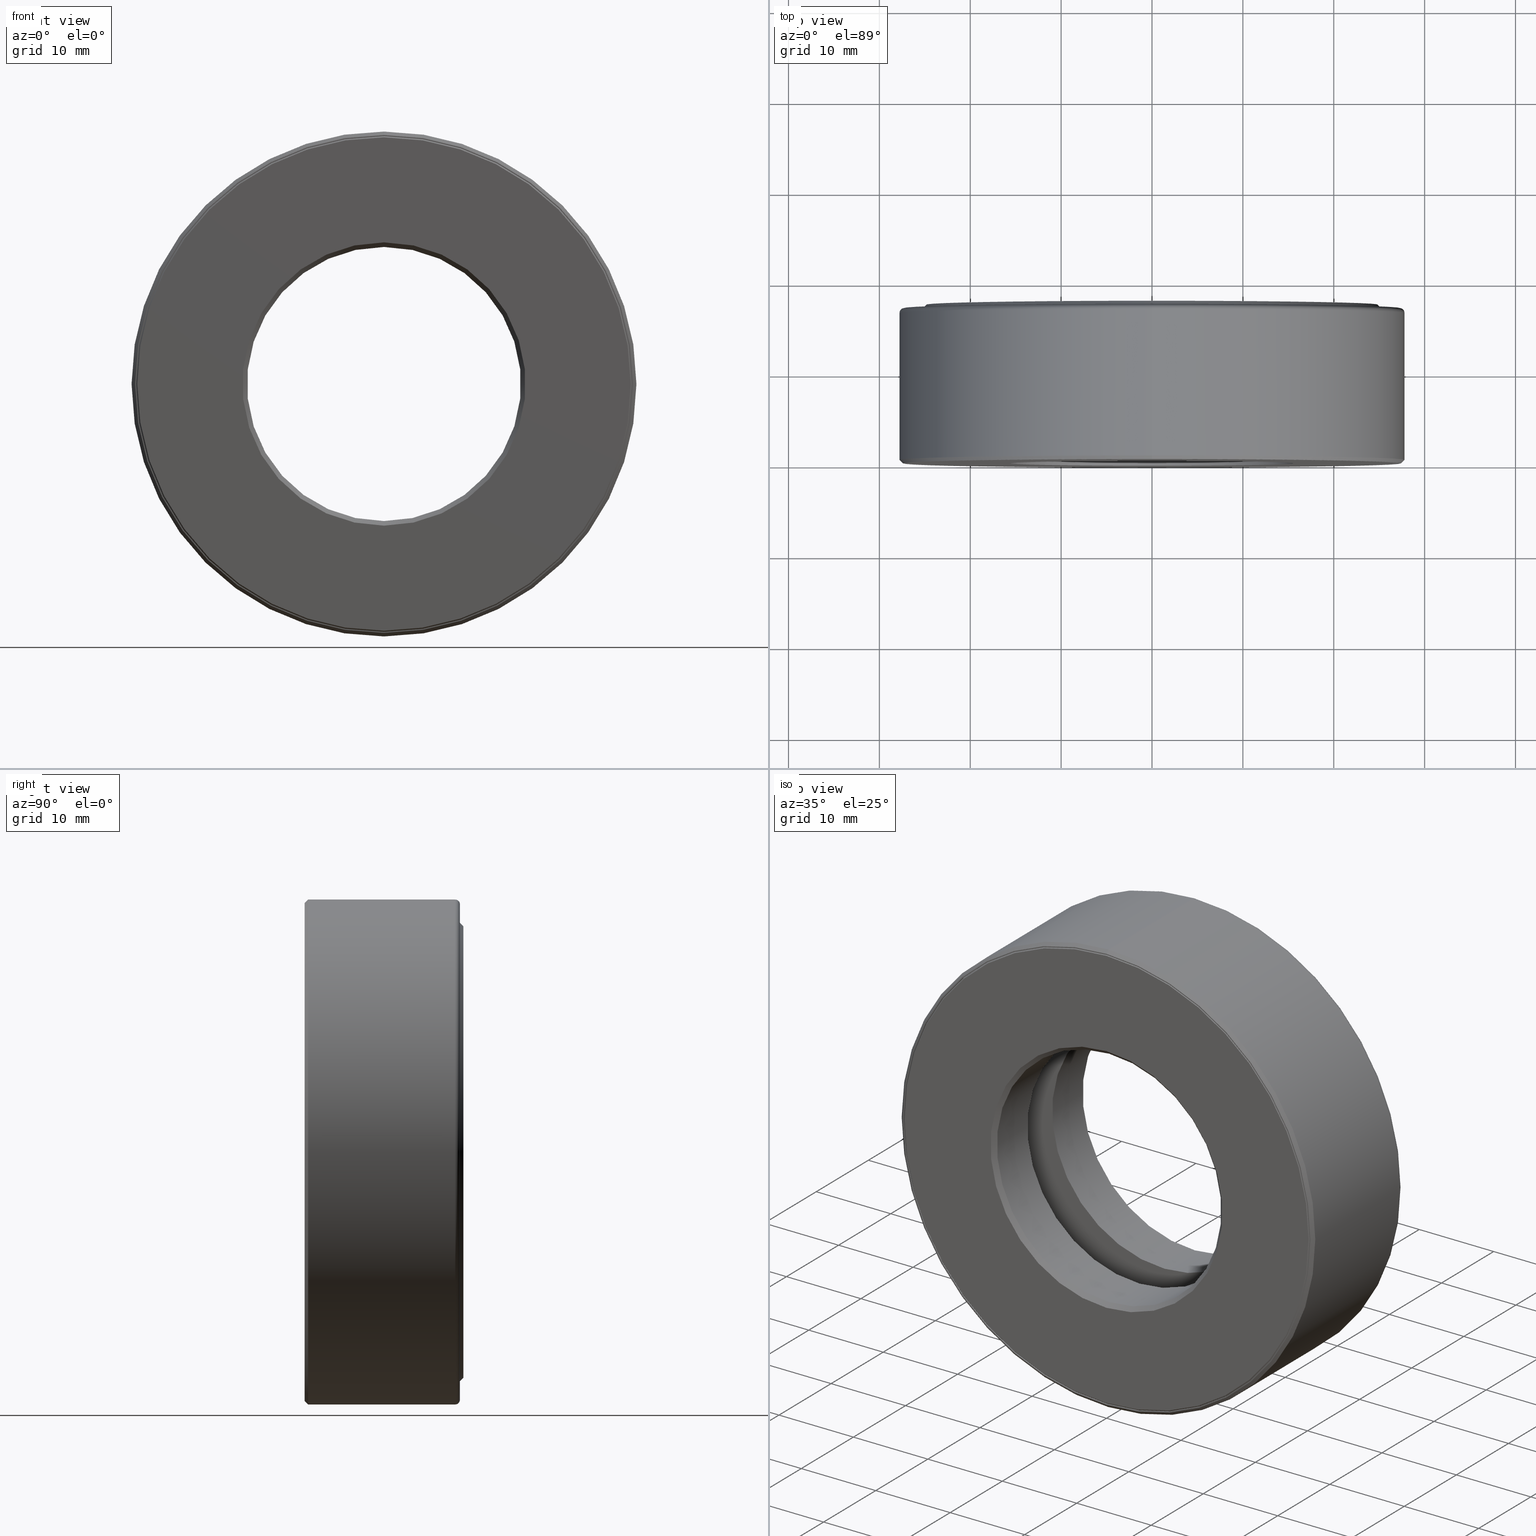
[diagram: canonical four-view strip — front | top / right | iso, engineering-drawing reading convention]
A machine part, canonical four-view strip (front | top / right | iso — engineering-drawing reading convention). The complete STEP part file that produces these views, byte-faithful:
ISO-10303-21;
HEADER;
FILE_DESCRIPTION (( 'STEP AP203' ),
    '1' );
FILE_NAME ('T-100-12.step',
    '2016-06-29T18:27:17',
    ( '' ),
    ( '' ),
    'SwSTEP 2.0',
    'SolidWorks 2016',
    '' );
FILE_SCHEMA (( 'CONFIG_CONTROL_DESIGN' ));
ENDSEC;

DATA;
#1 = CARTESIAN_POINT ( 'NONE',  ( 0.0000000000000000000, 0.2499999999999998600, 1.073749999999999800 ) ) ;
#2 = DIRECTION ( 'NONE',  ( 0.0000000000000000000, 0.0000000000000000000, 1.000000000000000000 ) ) ;
#3 = ORIENTED_EDGE ( 'NONE', *, *, #406, .F. ) ;
#4 = CC_DESIGN_DATE_AND_TIME_ASSIGNMENT ( #103, #355, ( #98 ) ) ;
#5 = EDGE_LOOP ( 'NONE', ( #513 ) ) ;
#6 =( LENGTH_UNIT ( ) NAMED_UNIT ( * ) SI_UNIT ( $, .METRE. ) );
#7 = VERTEX_POINT ( 'NONE', #529 ) ;
#8 = VERTEX_POINT ( 'NONE', #598 ) ;
#9 = CIRCLE ( 'NONE', #593, 0.6137500000000000200 ) ;
#10 = AXIS2_PLACEMENT_3D ( 'NONE', #183, #483, #520 ) ;
#11 = AXIS2_PLACEMENT_3D ( 'NONE', #75, #115, #419 ) ;
#12 = CARTESIAN_POINT ( 'NONE',  ( 0.0000000000000000000, 0.5995000000000001400, 0.0000000000000000000 ) ) ;
#13 = EDGE_LOOP ( 'NONE', ( #285 ) ) ;
#14 = ORIENTED_EDGE ( 'NONE', *, *, #166, .F. ) ;
#15 = DIRECTION ( 'NONE',  ( -0.0000000000000000000, 1.000000000000000000, -0.0000000000000000000 ) ) ;
#16 = FACE_BOUND ( 'NONE', #560, .T. ) ;
#17 = AXIS2_PLACEMENT_3D ( 'NONE', #210, #311, #359 ) ;
#18 = DIRECTION ( 'NONE',  ( 0.0000000000000000000, -0.0000000000000000000, -1.000000000000000000 ) ) ;
#19 = EDGE_LOOP ( 'NONE', ( #119 ) ) ;
#20 = CARTESIAN_POINT ( 'NONE',  ( 0.0000000000000000000, 0.6724999999999998800, 0.0000000000000000000 ) ) ;
#21 = VERTEX_POINT ( 'NONE', #1 ) ;
#22 = LOCAL_TIME ( 14, 27, 17.00000000000000000, #151 ) ;
#23 = VERTEX_POINT ( 'NONE', #326 ) ;
#24 = CIRCLE ( 'NONE', #577, 0.5937500000000000000 ) ;
#25 = EDGE_CURVE ( 'NONE', #436, #436, #109, .T. ) ;
#26 = UNCERTAINTY_MEASURE_WITH_UNIT (LENGTH_MEASURE( 1.000000000000000100E-005 ), #442, 'distance_accuracy_value', 'NONE');
#27 = DIRECTION ( 'NONE',  ( 0.0000000000000000000, 0.0000000000000000000, 1.000000000000000000 ) ) ;
#28 = ADVANCED_FACE ( 'NONE', ( #478, #493 ), #378, .T. ) ;
#29 = ORIENTED_EDGE ( 'NONE', *, *, #130, .T. ) ;
#30 = CLOSED_SHELL ( 'NONE', ( #587 ) ) ;
#31 = DIRECTION ( 'NONE',  ( 0.0000000000000000000, 0.0000000000000000000, 1.000000000000000000 ) ) ;
#32 = VERTEX_POINT ( 'NONE', #300 ) ;
#33 = CYLINDRICAL_SURFACE ( 'NONE', #403, 0.5937500000000000000 ) ;
#34 = AXIS2_PLACEMENT_3D ( 'NONE', #539, #201, #156 ) ;
#35 = ORIENTED_EDGE ( 'NONE', *, *, #71, .T. ) ;
#36 = EDGE_CURVE ( 'NONE', #23, #23, #82, .T. ) ;
#37 = DIRECTION ( 'NONE',  ( -0.0000000000000000000, 1.000000000000000000, -0.0000000000000000000 ) ) ;
#38 = FACE_OUTER_BOUND ( 'NONE', #343, .T. ) ;
#39 = PRODUCT ( 'T-100-12', 'T-100-12', '', ( #74 ) ) ;
#40 = CARTESIAN_POINT ( 'NONE',  ( 0.0000000000000000000, 0.6524999999999997500, 1.093750000000000000 ) ) ;
#41 = ORIENTED_EDGE ( 'NONE', *, *, #261, .T. ) ;
#42 = AXIS2_PLACEMENT_3D ( 'NONE', #323, #511, #31 ) ;
#43 = DIRECTION ( 'NONE',  ( 0.0000000000000000000, 0.0000000000000000000, 1.000000000000000000 ) ) ;
#44 = EDGE_LOOP ( 'NONE', ( #458 ) ) ;
#45 = CARTESIAN_POINT ( 'NONE',  ( 0.0000000000000000000, 0.2500000000000000000, 0.5937500000000000000 ) ) ;
#46 = MANIFOLD_SOLID_BREP ( 'BALLS[2]', #60 ) ;
#47 = EDGE_CURVE ( 'NONE', #8, #8, #370, .T. ) ;
#48 = DIRECTION ( 'NONE',  ( -0.0000000000000000000, 1.000000000000000000, -0.0000000000000000000 ) ) ;
#49 = FACE_OUTER_BOUND ( 'NONE', #259, .T. ) ;
#50 = DIRECTION ( 'NONE',  ( 0.0000000000000000000, 0.0000000000000000000, 1.000000000000000000 ) ) ;
#51 = DIRECTION ( 'NONE',  ( 0.0000000000000000000, 0.0000000000000000000, 1.000000000000000000 ) ) ;
#52 = DIRECTION ( 'NONE',  ( -0.0000000000000000000, 1.000000000000000000, -0.0000000000000000000 ) ) ;
#53 = ORIENTED_EDGE ( 'NONE', *, *, #215, .T. ) ;
#54 = CARTESIAN_POINT ( 'NONE',  ( 0.0000000000000000000, 0.0000000000000000000, 0.6137500000000000200 ) ) ;
#55 = DIRECTION ( 'NONE',  ( -0.0000000000000000000, 1.000000000000000000, -0.0000000000000000000 ) ) ;
#56 = PERSON ( 'UNSPECIFIED', 'UNSPECIFIED', 'UNSPECIFIED', ('UNSPECIFIED'), ('UNSPECIFIED'), ('UNSPECIFIED') ) ;
#57 = CALENDAR_DATE ( 2016, 29, 6 ) ;
#58 = CIRCLE ( 'NONE', #553, 1.013750000000000200 ) ;
#59 = PLANE ( 'NONE',  #34 ) ;
#60 = CLOSED_SHELL ( 'NONE', ( #475 ) ) ;
#61 = ORIENTED_EDGE ( 'NONE', *, *, #333, .F. ) ;
#62 = DIMENSIONAL_EXPONENTS ( 1.000000000000000000, 0.0000000000000000000, 0.0000000000000000000, 0.0000000000000000000, 0.0000000000000000000, 0.0000000000000000000, 0.0000000000000000000 ) ;
#63 = DIRECTION ( 'NONE',  ( -0.0000000000000000000, 1.000000000000000000, -0.0000000000000000000 ) ) ;
#64 = AXIS2_PLACEMENT_3D ( 'NONE', #399, #250, #496 ) ;
#65 = TOROIDAL_SURFACE ( 'NONE', #400, 0.9084999999999998600, 0.1562499999999999200 ) ;
#66 = APPROVAL_ROLE ( '' ) ;
#67 = DIRECTION ( 'NONE',  ( 0.0000000000000000000, 0.0000000000000000000, -1.000000000000000000 ) ) ;
#68 = EDGE_LOOP ( 'NONE', ( #486 ) ) ;
#69 = DIRECTION ( 'NONE',  ( -0.0000000000000000000, 1.000000000000000000, -0.0000000000000000000 ) ) ;
#70 = CARTESIAN_POINT ( 'NONE',  ( 0.0000000000000000000, 0.6875000000000000000, 0.0000000000000000000 ) ) ;
#71 = EDGE_CURVE ( 'NONE', #121, #121, #124, .T. ) ;
#72 = FACE_OUTER_BOUND ( 'NONE', #386, .T. ) ;
#73 = DIRECTION ( 'NONE',  ( 0.0000000000000000000, 0.0000000000000000000, 1.000000000000000000 ) ) ;
#74 = MECHANICAL_CONTEXT ( 'NONE', #161, 'mechanical' ) ;
#75 = CARTESIAN_POINT ( 'NONE',  ( -1.175183988073409900E-032, -3.148027961449053600E-017, 0.0000000000000000000 ) ) ;
#76 = ORIENTED_EDGE ( 'NONE', *, *, #439, .F. ) ;
#77 = ADVANCED_FACE ( 'NONE', ( #588, #233 ), #564, .F. ) ;
#78 = AXIS2_PLACEMENT_3D ( 'NONE', #338, #92, #530 ) ;
#79 = CARTESIAN_POINT ( 'NONE',  ( 0.0000000000000000000, 0.6724999999999998800, 0.0000000000000000000 ) ) ;
#80 = SHAPE_DEFINITION_REPRESENTATION ( #145, #198 ) ;
#81 = CARTESIAN_POINT ( 'NONE',  ( 0.0000000000000000000, -6.616194359655631800E-017, 0.0000000000000000000 ) ) ;
#82 = CIRCLE ( 'NONE', #10, 0.5937500000000000000 ) ;
#83 = FACE_OUTER_BOUND ( 'NONE', #84, .T. ) ;
#84 = EDGE_LOOP ( 'NONE', ( #155 ) ) ;
#85 = EDGE_LOOP ( 'NONE', ( #572 ) ) ;
#86 = DIRECTION ( 'NONE',  ( 0.0000000000000000000, -0.0000000000000000000, -1.000000000000000000 ) ) ;
#87 = EDGE_CURVE ( 'NONE', #152, #152, #602, .T. ) ;
#88 = DIRECTION ( 'NONE',  ( 0.0000000000000000000, 0.0000000000000000000, 1.000000000000000000 ) ) ;
#89 = ADVANCED_FACE ( 'NONE', ( #193, #16 ), #153, .T. ) ;
#90 = CARTESIAN_POINT ( 'NONE',  ( 0.0000000000000000000, 0.5995000000000001400, 1.066749999999999900 ) ) ;
#91 = CARTESIAN_POINT ( 'NONE',  ( 0.0000000000000000000, 0.0000000000000000000, 0.0000000000000000000 ) ) ;
#92 = DIRECTION ( 'NONE',  ( -0.0000000000000000000, 1.000000000000000000, -0.0000000000000000000 ) ) ;
#93 = ORIENTED_EDGE ( 'NONE', *, *, #235, .F. ) ;
#94 = CALENDAR_DATE ( 2016, 29, 6 ) ;
#95 = FACE_BOUND ( 'NONE', #165, .T. ) ;
#96 = EDGE_CURVE ( 'NONE', #518, #518, #387, .T. ) ;
#97 = CARTESIAN_POINT ( 'NONE',  ( 0.0000000000000000000, 0.6524999999999997500, 0.0000000000000000000 ) ) ;
#98 = PRODUCT_DEFINITION ( 'UNKNOWN', '', #433, #417 ) ;
#99 = ADVANCED_FACE ( 'NONE', ( #127, #228 ), #116, .F. ) ;
#100 = ORIENTED_EDGE ( 'NONE', *, *, #373, .F. ) ;
#101 = CARTESIAN_POINT ( 'NONE',  ( 0.0000000000000000000, 0.4375000000000000000, 1.066749999999999900 ) ) ;
#102 = CARTESIAN_POINT ( 'NONE',  ( 0.0000000000000000000, 0.0000000000000000000, 0.0000000000000000000 ) ) ;
#103 = DATE_AND_TIME ( #94, #379 ) ;
#104 = DIRECTION ( 'NONE',  ( -0.0000000000000000000, 1.000000000000000000, -0.0000000000000000000 ) ) ;
#105 = AXIS2_PLACEMENT_3D ( 'NONE', #255, #263, #206 ) ;
#106 = FACE_OUTER_BOUND ( 'NONE', #363, .T. ) ;
#107 = CARTESIAN_POINT ( 'NONE',  ( 0.0000000000000000000, 0.02000000000000005900, 0.0000000000000000000 ) ) ;
#108 = CARTESIAN_POINT ( 'NONE',  ( -1.751974655613626800E-031, -6.507490045258007300E-017, 0.0000000000000000000 ) ) ;
#109 = CIRCLE ( 'NONE', #446, 1.073750000000000000 ) ;
#110 = APPROVAL_ROLE ( '' ) ;
#111 = APPROVAL_DATE_TIME ( #328, #137 ) ;
#112 = AXIS2_PLACEMENT_3D ( 'NONE', #449, #408, #353 ) ;
#113 = CALENDAR_DATE ( 2016, 29, 6 ) ;
#114 = FACE_BOUND ( 'NONE', #128, .T. ) ;
#115 = DIRECTION ( 'NONE',  ( -0.0000000000000000000, 1.000000000000000000, 0.0000000000000000000 ) ) ;
#116 = CYLINDRICAL_SURFACE ( 'NONE', #189, 1.013750000000000200 ) ;
#117 = PRODUCT_RELATED_PRODUCT_CATEGORY ( 'detail', '', ( #39 ) ) ;
#118 = DIRECTION ( 'NONE',  ( 0.0000000000000000000, -1.000000000000000000, 0.0000000000000000000 ) ) ;
#119 = ORIENTED_EDGE ( 'NONE', *, *, #573, .F. ) ;
#120 = LENGTH_MEASURE_WITH_UNIT ( LENGTH_MEASURE( 0.02539999999999999900 ), #6 );
#121 = VERTEX_POINT ( 'NONE', #45 ) ;
#122 = FACE_OUTER_BOUND ( 'NONE', #443, .T. ) ;
#123 = CARTESIAN_POINT ( 'NONE',  ( 0.0000000000000000000, 0.02000000000000005900, 0.0000000000000000000 ) ) ;
#124 = CIRCLE ( 'NONE', #78, 0.5937500000000000000 ) ;
#125 = APPROVAL_PERSON_ORGANIZATION ( #290, #461, #170 ) ;
#126 = CIRCLE ( 'NONE', #224, 1.078750000000000100 ) ;
#127 = FACE_OUTER_BOUND ( 'NONE', #362, .T. ) ;
#128 = EDGE_LOOP ( 'NONE', ( #372 ) ) ;
#129 = CARTESIAN_POINT ( 'NONE',  ( 0.0000000000000000000, 0.6875000000000000000, 0.0000000000000000000 ) ) ;
#130 = EDGE_CURVE ( 'NONE', #133, #133, #508, .T. ) ;
#131 = ORIENTED_EDGE ( 'NONE', *, *, #261, .F. ) ;
#132 = SECURITY_CLASSIFICATION ( '', '', #164 ) ;
#133 = VERTEX_POINT ( 'NONE', #337 ) ;
#134 = CIRCLE ( 'NONE', #463, 0.7834999999999999700 ) ;
#135 = MANIFOLD_SOLID_BREP ( 'BALLS[1]', #30 ) ;
#136 = CARTESIAN_POINT ( 'NONE',  ( 0.0000000000000000000, 0.0000000000000000000, 0.0000000000000000000 ) ) ;
#137 = APPROVAL ( #455, 'UNSPECIFIED' ) ;
#138 = ADVANCED_FACE ( 'NONE', ( #543, #72 ), #480, .F. ) ;
#139 = CARTESIAN_POINT ( 'NONE',  ( 0.0000000000000000000, 0.01500000000000004500, 1.093750000000000000 ) ) ;
#140 = CARTESIAN_POINT ( 'NONE',  ( 0.0000000000000000000, -6.616194359655631800E-017, 0.0000000000000000000 ) ) ;
#141 = ORIENTED_EDGE ( 'NONE', *, *, #555, .F. ) ;
#142 = CARTESIAN_POINT ( 'NONE',  ( 0.0000000000000000000, 0.0000000000000000000, 0.0000000000000000000 ) ) ;
#143 = AXIS2_PLACEMENT_3D ( 'NONE', #459, #173, #27 ) ;
#144 = FACE_OUTER_BOUND ( 'NONE', #19, .T. ) ;
#145 = PRODUCT_DEFINITION_SHAPE ( 'NONE', 'NONE',  #98 ) ;
#146 = CARTESIAN_POINT ( 'NONE',  ( 0.0000000000000000000, 0.0000000000000000000, 0.0000000000000000000 ) ) ;
#147 = CC_DESIGN_PERSON_AND_ORGANIZATION_ASSIGNMENT ( #265, #267, ( #39 ) ) ;
#148 = DIRECTION ( 'NONE',  ( 0.0000000000000000000, 0.0000000000000000000, 1.000000000000000000 ) ) ;
#149 = EDGE_LOOP ( 'NONE', ( #305 ) ) ;
#150 = AXIS2_PLACEMENT_3D ( 'NONE', #129, #470, #275 ) ;
#151 = COORDINATED_UNIVERSAL_TIME_OFFSET ( 5, 0, .BEHIND. ) ;
#152 = VERTEX_POINT ( 'NONE', #274 ) ;
#153 = CONICAL_SURFACE ( 'NONE', #460, 1.078750000000000100, 0.7853981633974438400 ) ;
#154 = EDGE_LOOP ( 'NONE', ( #438 ) ) ;
#155 = ORIENTED_EDGE ( 'NONE', *, *, #25, .T. ) ;
#156 = DIRECTION ( 'NONE',  ( 0.0000000000000000000, -0.0000000000000000000, -1.000000000000000000 ) ) ;
#157 = VERTEX_POINT ( 'NONE', #434 ) ;
#158 = DIRECTION ( 'NONE',  ( -0.0000000000000000000, 1.000000000000000000, -0.0000000000000000000 ) ) ;
#159 = APPROVAL_PERSON_ORGANIZATION ( #488, #278, #66 ) ;
#160 = FACE_OUTER_BOUND ( 'NONE', #485, .T. ) ;
#161 = APPLICATION_CONTEXT ( 'configuration controlled 3d designs of mechanical parts and assemblies' ) ;
#162 = CIRCLE ( 'NONE', #64, 1.073750000000000000 ) ;
#163 = PLANE ( 'NONE',  #112 ) ;
#164 = SECURITY_CLASSIFICATION_LEVEL ( 'unclassified' ) ;
#165 = EDGE_LOOP ( 'NONE', ( #424 ) ) ;
#166 = EDGE_CURVE ( 'NONE', #380, #380, #422, .T. ) ;
#167 = PERSON_AND_ORGANIZATION ( #56, #567 ) ;
#168 = DIRECTION ( 'NONE',  ( -0.0000000000000000000, 1.000000000000000000, -0.0000000000000000000 ) ) ;
#169 = FACE_BOUND ( 'NONE', #13, .T. ) ;
#170 = APPROVAL_ROLE ( '' ) ;
#171 = CC_DESIGN_APPROVAL ( #137, ( #132 ) ) ;
#172 = EDGE_LOOP ( 'NONE', ( #29 ) ) ;
#173 = DIRECTION ( 'NONE',  ( -0.0000000000000000000, 1.000000000000000000, 0.0000000000000000000 ) ) ;
#174 = CARTESIAN_POINT ( 'NONE',  ( 3.172010796338986400E-015, 0.3437500000000000000, 0.9084999999999998600 ) ) ;
#175 = ADVANCED_FACE ( 'NONE', ( #38, #248 ), #592, .T. ) ;
#176 = DIRECTION ( 'NONE',  ( 0.0000000000000000000, 0.0000000000000000000, 1.000000000000000000 ) ) ;
#177 = EDGE_LOOP ( 'NONE', ( #322 ) ) ;
#178 = CC_DESIGN_PERSON_AND_ORGANIZATION_ASSIGNMENT ( #191, #505, ( #98 ) ) ;
#179 = COORDINATED_UNIVERSAL_TIME_OFFSET ( 5, 0, .BEHIND. ) ;
#180 = FACE_OUTER_BOUND ( 'NONE', #85, .T. ) ;
#181 = CARTESIAN_POINT ( 'NONE',  ( 0.0000000000000000000, 0.6674999999999998700, 0.5937500000000000000 ) ) ;
#182 = ORIENTED_EDGE ( 'NONE', *, *, #47, .F. ) ;
#183 = CARTESIAN_POINT ( 'NONE',  ( 0.0000000000000000000, 0.4375000000000000000, 0.0000000000000000000 ) ) ;
#184 = EDGE_CURVE ( 'NONE', #489, #489, #484, .T. ) ;
#185 = EDGE_LOOP ( 'NONE', ( #304 ) ) ;
#186 = CARTESIAN_POINT ( 'NONE',  ( 0.0000000000000000000, 0.6724999999999998800, 1.073750000000000000 ) ) ;
#187 = CARTESIAN_POINT ( 'NONE',  ( 0.0000000000000000000, 0.6524999999999997500, 1.073750000000000000 ) ) ;
#188 = DIRECTION ( 'NONE',  ( 0.0000000000000000000, 0.0000000000000000000, 1.000000000000000000 ) ) ;
#189 = AXIS2_PLACEMENT_3D ( 'NONE', #476, #52, #237 ) ;
#190 = ORIENTED_EDGE ( 'NONE', *, *, #411, .T. ) ;
#191 = PERSON_AND_ORGANIZATION ( #56, #567 ) ;
#192 = DIRECTION ( 'NONE',  ( -0.0000000000000000000, 1.000000000000000000, -0.0000000000000000000 ) ) ;
#193 = FACE_OUTER_BOUND ( 'NONE', #218, .T. ) ;
#194 = ADVANCED_FACE ( 'NONE', ( #106, #169 ), #221, .F. ) ;
#195 = ORIENTED_EDGE ( 'NONE', *, *, #184, .F. ) ;
#196 = ORIENTED_EDGE ( 'NONE', *, *, #184, .T. ) ;
#197 = DIRECTION ( 'NONE',  ( -0.0000000000000000000, 1.000000000000000000, -0.0000000000000000000 ) ) ;
#198 = ADVANCED_BREP_SHAPE_REPRESENTATION ( 'T-100-12', ( #222, #428, #571, #135, #46, #324, #524 ), #306 ) ;
#199 = AXIS2_PLACEMENT_3D ( 'NONE', #226, #284, #86 ) ;
#200 = FACE_BOUND ( 'NONE', #185, .T. ) ;
#201 = DIRECTION ( 'NONE',  ( 0.0000000000000000000, -1.000000000000000000, 0.0000000000000000000 ) ) ;
#202 = EDGE_CURVE ( 'NONE', #282, #282, #416, .T. ) ;
#203 = EDGE_LOOP ( 'NONE', ( #3 ) ) ;
#204 = ORIENTED_EDGE ( 'NONE', *, *, #468, .T. ) ;
#205 = DIRECTION ( 'NONE',  ( -0.0000000000000000000, 1.000000000000000000, -0.0000000000000000000 ) ) ;
#206 = DIRECTION ( 'NONE',  ( 0.0000000000000000000, 0.0000000000000000000, 1.000000000000000000 ) ) ;
#207 = AXIS2_PLACEMENT_3D ( 'NONE', #70, #118, #545 ) ;
#208 = FACE_OUTER_BOUND ( 'NONE', #512, .T. ) ;
#209 = CARTESIAN_POINT ( 'NONE',  ( 0.0000000000000000000, 0.4375000000000000000, 0.0000000000000000000 ) ) ;
#210 = CARTESIAN_POINT ( 'NONE',  ( 0.9084999999999998600, 0.3437500000000000000, -6.344021592677972700E-015 ) ) ;
#211 = PERSON_AND_ORGANIZATION_ROLE ( 'creator' ) ;
#212 = ORIENTED_EDGE ( 'NONE', *, *, #166, .T. ) ;
#213 = AXIS2_PLACEMENT_3D ( 'NONE', #91, #435, #188 ) ;
#214 = CARTESIAN_POINT ( 'NONE',  ( 0.0000000000000000000, 0.0000000000000000000, 0.0000000000000000000 ) ) ;
#215 = EDGE_CURVE ( 'NONE', #536, #536, #331, .T. ) ;
#216 = DIRECTION ( 'NONE',  ( 0.0000000000000000000, 0.0000000000000000000, 1.000000000000000000 ) ) ;
#217 = PLANE ( 'NONE',  #199 ) ;
#218 = EDGE_LOOP ( 'NONE', ( #14 ) ) ;
#219 = DIRECTION ( 'NONE',  ( -0.0000000000000000000, 1.000000000000000000, -0.0000000000000000000 ) ) ;
#220 = APPROVAL_DATE_TIME ( #357, #461 ) ;
#221 = CONICAL_SURFACE ( 'NONE', #538, 0.5937500000000000000, 0.7853981633974466100 ) ;
#222 = MANIFOLD_SOLID_BREP ( 'Revolve2[1]', #471 ) ;
#223 = ORIENTED_EDGE ( 'NONE', *, *, #202, .T. ) ;
#224 = AXIS2_PLACEMENT_3D ( 'NONE', #81, #559, #88 ) ;
#225 = EDGE_LOOP ( 'NONE', ( #35 ) ) ;
#226 = CARTESIAN_POINT ( 'NONE',  ( -8.998181797313131200E-017, 0.2499999999999999700, 0.0000000000000000000 ) ) ;
#227 = COORDINATED_UNIVERSAL_TIME_OFFSET ( 5, 0, .BEHIND. ) ;
#228 = FACE_OUTER_BOUND ( 'NONE', #401, .T. ) ;
#229 = AXIS2_PLACEMENT_3D ( 'NONE', #552, #334, #474 ) ;
#230 = ADVANCED_FACE ( 'NONE', ( #515, #122 ), #33, .F. ) ;
#231 = AXIS2_PLACEMENT_3D ( 'NONE', #253, #205, #537 ) ;
#232 = DIRECTION ( 'NONE',  ( 0.0000000000000000000, 0.0000000000000000000, 1.000000000000000000 ) ) ;
#233 = FACE_OUTER_BOUND ( 'NONE', #225, .T. ) ;
#234 = EDGE_LOOP ( 'NONE', ( #190 ) ) ;
#235 = EDGE_CURVE ( 'NONE', #268, #268, #597, .T. ) ;
#236 = CONICAL_SURFACE ( 'NONE', #308, 1.068750000000000100, 0.7853981633974581600 ) ;
#237 = DIRECTION ( 'NONE',  ( 0.0000000000000000000, 0.0000000000000000000, 1.000000000000000000 ) ) ;
#238 = CC_DESIGN_PERSON_AND_ORGANIZATION_ASSIGNMENT ( #313, #500, ( #132 ) ) ;
#239 = CARTESIAN_POINT ( 'NONE',  ( 0.0000000000000000000, 0.6674999999999998700, 0.0000000000000000000 ) ) ;
#240 = EDGE_LOOP ( 'NONE', ( #296 ) ) ;
#241 = CARTESIAN_POINT ( 'NONE',  ( 0.0000000000000000000, 0.6875000000000000000, 0.0000000000000000000 ) ) ;
#242 = AXIS2_PLACEMENT_3D ( 'NONE', #79, #69, #453 ) ;
#243 = ORIENTED_EDGE ( 'NONE', *, *, #47, .T. ) ;
#244 = ADVANCED_FACE ( 'NONE', ( ), #299, .T. ) ;
#245 = AXIS2_PLACEMENT_3D ( 'NONE', #97, #192, #148 ) ;
#246 = SPHERICAL_SURFACE ( 'NONE', #601, 0.1562500000000000000 ) ;
#247 = DIRECTION ( 'NONE',  ( -0.0000000000000000000, 1.000000000000000000, -0.0000000000000000000 ) ) ;
#248 = FACE_OUTER_BOUND ( 'NONE', #342, .T. ) ;
#249 = EDGE_CURVE ( 'NONE', #382, #382, #358, .T. ) ;
#250 = DIRECTION ( 'NONE',  ( -0.0000000000000000000, 1.000000000000000000, -0.0000000000000000000 ) ) ;
#251 = CARTESIAN_POINT ( 'NONE',  ( 0.0000000000000000000, 0.004999999999999648800, 0.0000000000000000000 ) ) ;
#252 = ORIENTED_EDGE ( 'NONE', *, *, #87, .T. ) ;
#253 = CARTESIAN_POINT ( 'NONE',  ( 0.0000000000000000000, 0.4375000000000000000, 0.0000000000000000000 ) ) ;
#254 = FACE_OUTER_BOUND ( 'NONE', #565, .T. ) ;
#255 = CARTESIAN_POINT ( 'NONE',  ( 0.0000000000000000000, 0.0000000000000000000, 0.0000000000000000000 ) ) ;
#256 = CIRCLE ( 'NONE', #391, 1.066749999999999900 ) ;
#257 = AXIS2_PLACEMENT_3D ( 'NONE', #575, #104, #541 ) ;
#258 = PLANE ( 'NONE',  #402 ) ;
#259 = EDGE_LOOP ( 'NONE', ( #252 ) ) ;
#260 = PLANE ( 'NONE',  #11 ) ;
#261 = EDGE_CURVE ( 'NONE', #495, #495, #292, .T. ) ;
#262 = VERTEX_POINT ( 'NONE', #482 ) ;
#263 = DIRECTION ( 'NONE',  ( -0.0000000000000000000, 1.000000000000000000, -0.0000000000000000000 ) ) ;
#264 = AXIS2_PLACEMENT_3D ( 'NONE', #142, #37, #549 ) ;
#265 = PERSON_AND_ORGANIZATION ( #56, #567 ) ;
#266 = CONICAL_SURFACE ( 'NONE', #207, 0.9787499999999997900, 0.7853981633974490600 ) ;
#267 = PERSON_AND_ORGANIZATION_ROLE ( 'design_owner' ) ;
#268 = VERTEX_POINT ( 'NONE', #522 ) ;
#269 = DIRECTION ( 'NONE',  ( 0.0000000000000000000, 0.0000000000000000000, 1.000000000000000000 ) ) ;
#270 = ADVANCED_FACE ( 'NONE', ( #490, #367 ), #163, .T. ) ;
#271 = AXIS2_PLACEMENT_3D ( 'NONE', #332, #595, #586 ) ;
#272 = EDGE_LOOP ( 'NONE', ( #41 ) ) ;
#273 = AXIS2_PLACEMENT_3D ( 'NONE', #576, #356, #494 ) ;
#274 = CARTESIAN_POINT ( 'NONE',  ( 0.0000000000000000000, 0.2499999999999998900, 1.033499999999999900 ) ) ;
#275 = DIRECTION ( 'NONE',  ( 0.0000000000000000000, 0.0000000000000000000, 1.000000000000000000 ) ) ;
#276 = CONICAL_SURFACE ( 'NONE', #423, 0.5937500000000000000, 0.7853981633974466100 ) ;
#277 = EDGE_CURVE ( 'NONE', #504, #504, #162, .T. ) ;
#278 = APPROVAL ( #580, 'UNSPECIFIED' ) ;
#279 = ORIENTED_EDGE ( 'NONE', *, *, #36, .F. ) ;
#280 = VERTEX_POINT ( 'NONE', #289 ) ;
#281 = APPROVAL_DATE_TIME ( #556, #278 ) ;
#282 = VERTEX_POINT ( 'NONE', #431 ) ;
#283 = FACE_OUTER_BOUND ( 'NONE', #68, .T. ) ;
#284 = DIRECTION ( 'NONE',  ( 0.0000000000000000000, -1.000000000000000000, 0.0000000000000000000 ) ) ;
#285 = ORIENTED_EDGE ( 'NONE', *, *, #96, .F. ) ;
#286 = ADVANCED_FACE ( 'NONE', ( #316, #49 ), #528, .F. ) ;
#287 = ORIENTED_EDGE ( 'NONE', *, *, #555, .T. ) ;
#288 = DIRECTION ( 'NONE',  ( 0.0000000000000000000, -1.000000000000000000, 0.0000000000000000000 ) ) ;
#289 = CARTESIAN_POINT ( 'NONE',  ( 0.0000000000000000000, -6.616194359655631800E-017, 1.078750000000000100 ) ) ;
#290 = PERSON_AND_ORGANIZATION ( #56, #567 ) ;
#291 = CARTESIAN_POINT ( 'NONE',  ( 0.0000000000000000000, -6.398785730860387700E-017, 0.0000000000000000000 ) ) ;
#292 = CIRCLE ( 'NONE', #578, 1.066749999999999900 ) ;
#293 = CC_DESIGN_DATE_AND_TIME_ASSIGNMENT ( #426, #405, ( #132 ) ) ;
#294 = DIRECTION ( 'NONE',  ( -0.0000000000000000000, 1.000000000000000000, -0.0000000000000000000 ) ) ;
#295 = DIRECTION ( 'NONE',  ( 0.0000000000000000000, 0.0000000000000000000, 1.000000000000000000 ) ) ;
#296 = ORIENTED_EDGE ( 'NONE', *, *, #583, .F. ) ;
#297 =( NAMED_UNIT ( * ) PLANE_ANGLE_UNIT ( ) SI_UNIT ( $, .RADIAN. ) );
#298 = DIRECTION ( 'NONE',  ( -0.0000000000000000000, 1.000000000000000000, -0.0000000000000000000 ) ) ;
#299 = SPHERICAL_SURFACE ( 'NONE', #273, 0.1562500000000000000 ) ;
#300 = CARTESIAN_POINT ( 'NONE',  ( 0.0000000000000000000, 0.6724999999999998800, 1.013750000000000200 ) ) ;
#301 = ADVANCED_FACE ( 'NONE', ( #441, #180 ), #454, .F. ) ;
#302 = CARTESIAN_POINT ( 'NONE',  ( -0.9084999999999998600, 0.3437500000000000000, 0.0000000000000000000 ) ) ;
#303 = ADVANCED_FACE ( 'NONE', ( #395, #95 ), #276, .F. ) ;
#304 = ORIENTED_EDGE ( 'NONE', *, *, #373, .T. ) ;
#305 = ORIENTED_EDGE ( 'NONE', *, *, #249, .T. ) ;
#306 =( GEOMETRIC_REPRESENTATION_CONTEXT ( 3 ) GLOBAL_UNCERTAINTY_ASSIGNED_CONTEXT ( ( #26 ) ) GLOBAL_UNIT_ASSIGNED_CONTEXT ( ( #442, #297, #317 ) ) REPRESENTATION_CONTEXT ( 'NONE', 'WORKASPACE' ) );
#307 = AXIS2_PLACEMENT_3D ( 'NONE', #108, #315, #269 ) ;
#308 = AXIS2_PLACEMENT_3D ( 'NONE', #445, #158, #487 ) ;
#309 = PERSON_AND_ORGANIZATION_ROLE ( 'design_supplier' ) ;
#310 = EDGE_LOOP ( 'NONE', ( #329 ) ) ;
#311 = DIRECTION ( 'NONE',  ( 6.982962677686269100E-015, -0.0000000000000000000, 1.000000000000000000 ) ) ;
#312 = CC_DESIGN_PERSON_AND_ORGANIZATION_ASSIGNMENT ( #440, #309, ( #433 ) ) ;
#313 = PERSON_AND_ORGANIZATION ( #56, #567 ) ;
#314 = FACE_BOUND ( 'NONE', #502, .T. ) ;
#315 = DIRECTION ( 'NONE',  ( -0.0000000000000000000, 1.000000000000000000, 0.0000000000000000000 ) ) ;
#316 = FACE_OUTER_BOUND ( 'NONE', #548, .T. ) ;
#317 =( NAMED_UNIT ( * ) SI_UNIT ( $, .STERADIAN. ) SOLID_ANGLE_UNIT ( ) );
#318 = DIRECTION ( 'NONE',  ( 0.0000000000000000000, 0.0000000000000000000, 1.000000000000000000 ) ) ;
#319 = ADVANCED_FACE ( 'NONE', ( ), #606, .T. ) ;
#320 = EDGE_LOOP ( 'NONE', ( #131 ) ) ;
#321 = DIRECTION ( 'NONE',  ( -0.0000000000000000000, 1.000000000000000000, -0.0000000000000000000 ) ) ;
#322 = ORIENTED_EDGE ( 'NONE', *, *, #468, .F. ) ;
#323 = CARTESIAN_POINT ( 'NONE',  ( 0.0000000000000000000, 0.6875000000000000000, 0.0000000000000000000 ) ) ;
#324 = MANIFOLD_SOLID_BREP ( 'BALLS[3]', #421 ) ;
#325 = VERTEX_POINT ( 'NONE', #54 ) ;
#326 = CARTESIAN_POINT ( 'NONE',  ( 0.0000000000000000000, 0.4375000000000000000, 0.5937500000000000000 ) ) ;
#327 = ADVANCED_FACE ( 'NONE', ( #283, #409 ), #236, .T. ) ;
#328 = DATE_AND_TIME ( #517, #22 ) ;
#329 = ORIENTED_EDGE ( 'NONE', *, *, #36, .T. ) ;
#330 = CALENDAR_DATE ( 2016, 29, 6 ) ;
#331 = CIRCLE ( 'NONE', #42, 0.6137500000000000200 ) ;
#332 = CARTESIAN_POINT ( 'NONE',  ( 0.0000000000000000000, 0.2499999999999998600, 0.0000000000000000000 ) ) ;
#333 = EDGE_CURVE ( 'NONE', #157, #157, #134, .T. ) ;
#334 = DIRECTION ( 'NONE',  ( -0.0000000000000000000, 1.000000000000000000, -0.0000000000000000000 ) ) ;
#335 = EDGE_LOOP ( 'NONE', ( #589 ) ) ;
#336 = ORIENTED_EDGE ( 'NONE', *, *, #411, .F. ) ;
#337 = CARTESIAN_POINT ( 'NONE',  ( 0.0000000000000000000, -6.398785730860387700E-017, 1.073749999999999800 ) ) ;
#338 = CARTESIAN_POINT ( 'NONE',  ( 0.0000000000000000000, 0.2500000000000000000, 0.0000000000000000000 ) ) ;
#339 = AXIS2_PLACEMENT_3D ( 'NONE', #437, #390, #432 ) ;
#340 = CIRCLE ( 'NONE', #242, 1.013750000000000200 ) ;
#341 = DIRECTION ( 'NONE',  ( -0.0000000000000000000, 1.000000000000000000, -0.0000000000000000000 ) ) ;
#342 = EDGE_LOOP ( 'NONE', ( #212 ) ) ;
#343 = EDGE_LOOP ( 'NONE', ( #195 ) ) ;
#344 = CARTESIAN_POINT ( 'NONE',  ( 0.0000000000000000000, 0.6674999999999998700, 0.0000000000000000000 ) ) ;
#345 = FACE_OUTER_BOUND ( 'NONE', #479, .T. ) ;
#346 = DIRECTION ( 'NONE',  ( 0.0000000000000000000, 0.0000000000000000000, 1.000000000000000000 ) ) ;
#347 = ADVANCED_FACE ( 'NONE', ( #498, #144 ), #59, .T. ) ;
#348 = DIRECTION ( 'NONE',  ( 0.0000000000000000000, 0.0000000000000000000, 1.000000000000000000 ) ) ;
#349 = EDGE_LOOP ( 'NONE', ( #141 ) ) ;
#350 = EDGE_LOOP ( 'NONE', ( #412 ) ) ;
#351 = ADVANCED_FACE ( 'NONE', ( #375, #547 ), #260, .F. ) ;
#352 = AXIS2_PLACEMENT_3D ( 'NONE', #102, #63, #404 ) ;
#353 = DIRECTION ( 'NONE',  ( 0.0000000000000000000, -0.0000000000000000000, -1.000000000000000000 ) ) ;
#354 = PLANE ( 'NONE',  #307 ) ;
#355 = DATE_TIME_ROLE ( 'creation_date' ) ;
#356 = DIRECTION ( 'NONE',  ( 1.000000000000000000, 0.0000000000000000000, -1.047444401652940000E-014 ) ) ;
#357 = DATE_AND_TIME ( #113, #581 ) ;
#358 = CIRCLE ( 'NONE', #525, 1.073749999999999800 ) ;
#359 = DIRECTION ( 'NONE',  ( -1.000000000000000000, 0.0000000000000000000, 6.982962677686269100E-015 ) ) ;
#360 = DIRECTION ( 'NONE',  ( -0.0000000000000000000, 1.000000000000000000, -0.0000000000000000000 ) ) ;
#361 = APPLICATION_PROTOCOL_DEFINITION ( 'international standard', 'config_control_design', 1994, #161 ) ;
#362 = EDGE_LOOP ( 'NONE', ( #100 ) ) ;
#363 = EDGE_LOOP ( 'NONE', ( #53 ) ) ;
#364 = DIRECTION ( 'NONE',  ( 0.0000000000000000000, 0.0000000000000000000, 1.000000000000000000 ) ) ;
#365 = CYLINDRICAL_SURFACE ( 'NONE', #264, 1.066749999999999900 ) ;
#366 = DIRECTION ( 'NONE',  ( -0.0000000000000000000, 1.000000000000000000, -0.0000000000000000000 ) ) ;
#367 = FACE_OUTER_BOUND ( 'NONE', #574, .T. ) ;
#368 = ADVANCED_FACE ( 'NONE', ( #519, #469 ), #354, .F. ) ;
#369 = DIRECTION ( 'NONE',  ( -3.491481338843134500E-015, 0.0000000000000000000, -1.000000000000000000 ) ) ;
#370 = CIRCLE ( 'NONE', #550, 1.068750000000000100 ) ;
#371 = ADVANCED_FACE ( 'NONE', ( #582, #83 ), #258, .F. ) ;
#372 = ORIENTED_EDGE ( 'NONE', *, *, #202, .F. ) ;
#373 = EDGE_CURVE ( 'NONE', #262, #262, #58, .T. ) ;
#374 = FACE_OUTER_BOUND ( 'NONE', #234, .T. ) ;
#375 = FACE_OUTER_BOUND ( 'NONE', #516, .T. ) ;
#376 = CC_DESIGN_PERSON_AND_ORGANIZATION_ASSIGNMENT ( #596, #211, ( #433 ) ) ;
#377 = EDGE_LOOP ( 'NONE', ( #243 ) ) ;
#378 = PLANE ( 'NONE',  #150 ) ;
#379 = LOCAL_TIME ( 14, 27, 17.00000000000000000, #227 ) ;
#380 = VERTEX_POINT ( 'NONE', #139 ) ;
#381 = DIRECTION ( 'NONE',  ( -1.000000000000000000, 0.0000000000000000000, 3.491481338843134500E-015 ) ) ;
#382 = VERTEX_POINT ( 'NONE', #563 ) ;
#383 = CARTESIAN_POINT ( 'NONE',  ( 0.0000000000000000000, 0.6875000000000000000, 0.6137500000000000200 ) ) ;
#384 = EDGE_LOOP ( 'NONE', ( #76 ) ) ;
#385 = DIRECTION ( 'NONE',  ( 0.0000000000000000000, -0.0000000000000000000, -1.000000000000000000 ) ) ;
#386 = EDGE_LOOP ( 'NONE', ( #392 ) ) ;
#387 = CIRCLE ( 'NONE', #430, 0.5937500000000000000 ) ;
#388 = DIRECTION ( 'NONE',  ( 0.0000000000000000000, 0.0000000000000000000, 1.000000000000000000 ) ) ;
#389 = CARTESIAN_POINT ( 'NONE',  ( 0.0000000000000000000, 0.4375000000000000000, 0.7834999999999999700 ) ) ;
#390 = DIRECTION ( 'NONE',  ( -0.0000000000000000000, 1.000000000000000000, -0.0000000000000000000 ) ) ;
#391 = AXIS2_PLACEMENT_3D ( 'NONE', #209, #168, #456 ) ;
#392 = ORIENTED_EDGE ( 'NONE', *, *, #583, .T. ) ;
#393 = FACE_OUTER_BOUND ( 'NONE', #320, .T. ) ;
#394 = DIRECTION ( 'NONE',  ( 0.0000000000000000000, 0.0000000000000000000, 1.000000000000000000 ) ) ;
#395 = FACE_OUTER_BOUND ( 'NONE', #384, .T. ) ;
#396 = ADVANCED_FACE ( 'NONE', ( #558, #345 ), #427, .T. ) ;
#397 = CARTESIAN_POINT ( 'NONE',  ( 0.0000000000000000000, 0.2499999999999999200, 0.0000000000000000000 ) ) ;
#398 = DIRECTION ( 'NONE',  ( 0.0000000000000000000, 0.0000000000000000000, 1.000000000000000000 ) ) ;
#399 = CARTESIAN_POINT ( 'NONE',  ( 0.0000000000000000000, 0.6524999999999997500, 0.0000000000000000000 ) ) ;
#400 = AXIS2_PLACEMENT_3D ( 'NONE', #410, #366, #216 ) ;
#401 = EDGE_LOOP ( 'NONE', ( #204 ) ) ;
#402 = AXIS2_PLACEMENT_3D ( 'NONE', #20, #506, #18 ) ;
#403 = AXIS2_PLACEMENT_3D ( 'NONE', #146, #219, #346 ) ;
#404 = DIRECTION ( 'NONE',  ( 0.0000000000000000000, 0.0000000000000000000, 1.000000000000000000 ) ) ;
#405 = DATE_TIME_ROLE ( 'classification_date' ) ;
#406 = EDGE_CURVE ( 'NONE', #7, #7, #24, .T. ) ;
#407 = FACE_OUTER_BOUND ( 'NONE', #272, .T. ) ;
#408 = DIRECTION ( 'NONE',  ( 0.0000000000000000000, -1.000000000000000000, 0.0000000000000000000 ) ) ;
#409 = FACE_BOUND ( 'NONE', #377, .T. ) ;
#410 = CARTESIAN_POINT ( 'NONE',  ( 0.0000000000000000000, 0.3437500000000000000, 0.0000000000000000000 ) ) ;
#411 = EDGE_CURVE ( 'NONE', #481, #481, #256, .T. ) ;
#412 = ORIENTED_EDGE ( 'NONE', *, *, #333, .T. ) ;
#413 = DIRECTION ( 'NONE',  ( -0.0000000000000000000, 1.000000000000000000, -0.0000000000000000000 ) ) ;
#414 = LOCAL_TIME ( 14, 27, 17.00000000000000000, #179 ) ;
#415 = APPLICATION_CONTEXT ( 'configuration controlled 3d designs of mechanical parts and assemblies' ) ;
#416 = CIRCLE ( 'NONE', #562, 0.9787499999999997900 ) ;
#417 = DESIGN_CONTEXT ( 'detailed design', #415, 'design' ) ;
#418 = PLANE ( 'NONE',  #143 ) ;
#419 = DIRECTION ( 'NONE',  ( 0.0000000000000000000, 0.0000000000000000000, 1.000000000000000000 ) ) ;
#420 = EDGE_LOOP ( 'NONE', ( #429 ) ) ;
#421 = CLOSED_SHELL ( 'NONE', ( #244 ) ) ;
#422 = CIRCLE ( 'NONE', #509, 1.093750000000000000 ) ;
#423 = AXIS2_PLACEMENT_3D ( 'NONE', #107, #450, #67 ) ;
#424 = ORIENTED_EDGE ( 'NONE', *, *, #406, .T. ) ;
#425 = AXIS2_PLACEMENT_3D ( 'NONE', #291, #55, #232 ) ;
#426 = DATE_AND_TIME ( #57, #414 ) ;
#427 = TOROIDAL_SURFACE ( 'NONE', #603, 1.073750000000000000, 0.02000000000000005900 ) ;
#428 = MANIFOLD_SOLID_BREP ( 'Revolve2[2]', #540 ) ;
#429 = ORIENTED_EDGE ( 'NONE', *, *, #215, .F. ) ;
#430 = AXIS2_PLACEMENT_3D ( 'NONE', #344, #341, #295 ) ;
#431 = CARTESIAN_POINT ( 'NONE',  ( 0.0000000000000000000, 0.6875000000000000000, 0.9787499999999997900 ) ) ;
#432 = DIRECTION ( 'NONE',  ( 0.0000000000000000000, 0.0000000000000000000, 1.000000000000000000 ) ) ;
#433 = PRODUCT_DEFINITION_FORMATION_WITH_SPECIFIED_SOURCE ( 'ANY', '', #39, .NOT_KNOWN. ) ;
#434 = CARTESIAN_POINT ( 'NONE',  ( 0.0000000000000000000, 0.2499999999999999200, 0.7834999999999999700 ) ) ;
#435 = DIRECTION ( 'NONE',  ( -0.0000000000000000000, 1.000000000000000000, -0.0000000000000000000 ) ) ;
#436 = VERTEX_POINT ( 'NONE', #186 ) ;
#437 = CARTESIAN_POINT ( 'NONE',  ( 0.0000000000000000000, 0.2499999999999998900, 0.0000000000000000000 ) ) ;
#438 = ORIENTED_EDGE ( 'NONE', *, *, #439, .T. ) ;
#439 = EDGE_CURVE ( 'NONE', #325, #325, #9, .T. ) ;
#440 = PERSON_AND_ORGANIZATION ( #56, #567 ) ;
#441 = FACE_OUTER_BOUND ( 'NONE', #240, .T. ) ;
#442 =( CONVERSION_BASED_UNIT ( 'INCH', #120 ) LENGTH_UNIT ( ) NAMED_UNIT ( #62 ) );
#443 = EDGE_LOOP ( 'NONE', ( #279 ) ) ;
#444 = ORIENTED_EDGE ( 'NONE', *, *, #573, .T. ) ;
#445 = CARTESIAN_POINT ( 'NONE',  ( 0.0000000000000000000, -6.296055922898107200E-017, 0.0000000000000000000 ) ) ;
#446 = AXIS2_PLACEMENT_3D ( 'NONE', #472, #464, #176 ) ;
#447 = DIRECTION ( 'NONE',  ( 0.0000000000000000000, 0.0000000000000000000, -1.000000000000000000 ) ) ;
#448 = SPHERICAL_SURFACE ( 'NONE', #17, 0.1562500000000000000 ) ;
#449 = CARTESIAN_POINT ( 'NONE',  ( 0.0000000000000000000, 0.4375000000000000000, 0.0000000000000000000 ) ) ;
#450 = DIRECTION ( 'NONE',  ( 0.0000000000000000000, -1.000000000000000000, 0.0000000000000000000 ) ) ;
#451 = CC_DESIGN_APPROVAL ( #278, ( #433 ) ) ;
#452 = APPROVAL_STATUS ( 'not_yet_approved' ) ;
#453 = DIRECTION ( 'NONE',  ( 0.0000000000000000000, 0.0000000000000000000, 1.000000000000000000 ) ) ;
#454 = CYLINDRICAL_SURFACE ( 'NONE', #352, 1.073749999999999800 ) ;
#455 = APPROVAL_STATUS ( 'not_yet_approved' ) ;
#456 = DIRECTION ( 'NONE',  ( 0.0000000000000000000, 0.0000000000000000000, 1.000000000000000000 ) ) ;
#457 = APPLICATION_PROTOCOL_DEFINITION ( 'international standard', 'config_control_design', 1994, #415 ) ;
#458 = ORIENTED_EDGE ( 'NONE', *, *, #130, .F. ) ;
#459 = CARTESIAN_POINT ( 'NONE',  ( 0.0000000000000000000, 0.6524999999999997500, 0.0000000000000000000 ) ) ;
#460 = AXIS2_PLACEMENT_3D ( 'NONE', #140, #294, #43 ) ;
#461 = APPROVAL ( #452, 'UNSPECIFIED' ) ;
#462 = AXIS2_PLACEMENT_3D ( 'NONE', #604, #288, #385 ) ;
#463 = AXIS2_PLACEMENT_3D ( 'NONE', #397, #15, #491 ) ;
#464 = DIRECTION ( 'NONE',  ( -0.0000000000000000000, 1.000000000000000000, -0.0000000000000000000 ) ) ;
#465 = ORIENTED_EDGE ( 'NONE', *, *, #71, .F. ) ;
#466 = COORDINATED_UNIVERSAL_TIME_OFFSET ( 5, 0, .BEHIND. ) ;
#467 = CIRCLE ( 'NONE', #229, 0.7834999999999999700 ) ;
#468 = EDGE_CURVE ( 'NONE', #32, #32, #340, .T. ) ;
#469 = FACE_BOUND ( 'NONE', #172, .T. ) ;
#470 = DIRECTION ( 'NONE',  ( -0.0000000000000000000, 1.000000000000000000, 0.0000000000000000000 ) ) ;
#471 = CLOSED_SHELL ( 'NONE', ( #286, #138, #301, #507, #99, #371, #396, #175, #89, #368, #535, #327, #351, #303, #77, #599 ) ) ;
#472 = CARTESIAN_POINT ( 'NONE',  ( 0.0000000000000000000, 0.6724999999999998800, 0.0000000000000000000 ) ) ;
#473 = AXIS2_PLACEMENT_3D ( 'NONE', #302, #447, #570 ) ;
#474 = DIRECTION ( 'NONE',  ( 0.0000000000000000000, 0.0000000000000000000, 1.000000000000000000 ) ) ;
#475 = ADVANCED_FACE ( 'NONE', ( ), #448, .T. ) ;
#476 = CARTESIAN_POINT ( 'NONE',  ( 0.0000000000000000000, 0.0000000000000000000, 0.0000000000000000000 ) ) ;
#477 = CARTESIAN_POINT ( 'NONE',  ( 0.0000000000000000000, 0.0000000000000000000, 0.0000000000000000000 ) ) ;
#478 = FACE_OUTER_BOUND ( 'NONE', #584, .T. ) ;
#479 = EDGE_LOOP ( 'NONE', ( #196 ) ) ;
#480 = PLANE ( 'NONE',  #462 ) ;
#481 = VERTEX_POINT ( 'NONE', #101 ) ;
#482 = CARTESIAN_POINT ( 'NONE',  ( 0.0000000000000000000, 0.6524999999999997500, 1.013750000000000200 ) ) ;
#483 = DIRECTION ( 'NONE',  ( -0.0000000000000000000, 1.000000000000000000, -0.0000000000000000000 ) ) ;
#484 = CIRCLE ( 'NONE', #245, 1.093750000000000000 ) ;
#485 = EDGE_LOOP ( 'NONE', ( #503 ) ) ;
#486 = ORIENTED_EDGE ( 'NONE', *, *, #249, .F. ) ;
#487 = DIRECTION ( 'NONE',  ( 0.0000000000000000000, 0.0000000000000000000, 1.000000000000000000 ) ) ;
#488 = PERSON_AND_ORGANIZATION ( #56, #567 ) ;
#489 = VERTEX_POINT ( 'NONE', #40 ) ;
#490 = FACE_BOUND ( 'NONE', #335, .T. ) ;
#491 = DIRECTION ( 'NONE',  ( 0.0000000000000000000, 0.0000000000000000000, 1.000000000000000000 ) ) ;
#492 = AXIS2_PLACEMENT_3D ( 'NONE', #136, #48, #50 ) ;
#493 = FACE_BOUND ( 'NONE', #420, .T. ) ;
#494 = DIRECTION ( 'NONE',  ( 1.047444401652940000E-014, 0.0000000000000000000, 1.000000000000000000 ) ) ;
#495 = VERTEX_POINT ( 'NONE', #90 ) ;
#496 = DIRECTION ( 'NONE',  ( 0.0000000000000000000, 0.0000000000000000000, 1.000000000000000000 ) ) ;
#497 = DIRECTION ( 'NONE',  ( 1.000000000000000000, 0.0000000000000000000, 0.0000000000000000000 ) ) ;
#498 = FACE_BOUND ( 'NONE', #310, .T. ) ;
#499 = DIRECTION ( 'NONE',  ( 0.0000000000000000000, 0.0000000000000000000, 1.000000000000000000 ) ) ;
#500 = PERSON_AND_ORGANIZATION_ROLE ( 'classification_officer' ) ;
#501 = CARTESIAN_POINT ( 'NONE',  ( 0.0000000000000000000, 0.6524999999999997500, 0.0000000000000000000 ) ) ;
#502 = EDGE_LOOP ( 'NONE', ( #465 ) ) ;
#503 = ORIENTED_EDGE ( 'NONE', *, *, #277, .F. ) ;
#504 = VERTEX_POINT ( 'NONE', #187 ) ;
#505 = PERSON_AND_ORGANIZATION_ROLE ( 'creator' ) ;
#506 = DIRECTION ( 'NONE',  ( 0.0000000000000000000, -1.000000000000000000, 0.0000000000000000000 ) ) ;
#507 = ADVANCED_FACE ( 'NONE', ( #160, #200 ), #418, .F. ) ;
#508 = CIRCLE ( 'NONE', #425, 1.073749999999999800 ) ;
#509 = AXIS2_PLACEMENT_3D ( 'NONE', #526, #298, #568 ) ;
#510 = DIRECTION ( 'NONE',  ( -0.0000000000000000000, 1.000000000000000000, -0.0000000000000000000 ) ) ;
#511 = DIRECTION ( 'NONE',  ( -0.0000000000000000000, 1.000000000000000000, -0.0000000000000000000 ) ) ;
#512 = EDGE_LOOP ( 'NONE', ( #444 ) ) ;
#513 = ORIENTED_EDGE ( 'NONE', *, *, #25, .F. ) ;
#514 = FACE_OUTER_BOUND ( 'NONE', #149, .T. ) ;
#515 = FACE_OUTER_BOUND ( 'NONE', #544, .T. ) ;
#516 = EDGE_LOOP ( 'NONE', ( #182 ) ) ;
#517 = CALENDAR_DATE ( 2016, 29, 6 ) ;
#518 = VERTEX_POINT ( 'NONE', #181 ) ;
#519 = FACE_OUTER_BOUND ( 'NONE', #349, .T. ) ;
#520 = DIRECTION ( 'NONE',  ( 0.0000000000000000000, 0.0000000000000000000, 1.000000000000000000 ) ) ;
#521 = ADVANCED_FACE ( 'NONE', ( #208, #254 ), #65, .F. ) ;
#522 = CARTESIAN_POINT ( 'NONE',  ( 0.0000000000000000000, 0.4375000000000000000, 1.033499999999999900 ) ) ;
#523 = EDGE_LOOP ( 'NONE', ( #554 ) ) ;
#524 = AXIS2_PLACEMENT_3D ( 'NONE', #477, #51, #497 ) ;
#525 = AXIS2_PLACEMENT_3D ( 'NONE', #251, #247, #348 ) ;
#526 = CARTESIAN_POINT ( 'NONE',  ( 0.0000000000000000000, 0.01500000000000004500, 0.0000000000000000000 ) ) ;
#527 = FACE_OUTER_BOUND ( 'NONE', #44, .T. ) ;
#528 = TOROIDAL_SURFACE ( 'NONE', #257, 0.9084999999999998600, 0.1562499999999999700 ) ;
#529 = CARTESIAN_POINT ( 'NONE',  ( 0.0000000000000000000, 0.02000000000000005900, 0.5937500000000000000 ) ) ;
#530 = DIRECTION ( 'NONE',  ( 0.0000000000000000000, 0.0000000000000000000, 1.000000000000000000 ) ) ;
#531 = ORIENTED_EDGE ( 'NONE', *, *, #96, .T. ) ;
#532 = APPROVAL_PERSON_ORGANIZATION ( #167, #137, #110 ) ;
#533 = DIRECTION ( 'NONE',  ( -0.0000000000000000000, 1.000000000000000000, -0.0000000000000000000 ) ) ;
#534 = FACE_OUTER_BOUND ( 'NONE', #350, .T. ) ;
#535 = ADVANCED_FACE ( 'NONE', ( #527, #514 ), #591, .F. ) ;
#536 = VERTEX_POINT ( 'NONE', #383 ) ;
#537 = DIRECTION ( 'NONE',  ( 0.0000000000000000000, 0.0000000000000000000, 1.000000000000000000 ) ) ;
#538 = AXIS2_PLACEMENT_3D ( 'NONE', #239, #533, #2 ) ;
#539 = CARTESIAN_POINT ( 'NONE',  ( 0.0000000000000000000, 0.4375000000000000000, 0.0000000000000000000 ) ) ;
#540 = CLOSED_SHELL ( 'NONE', ( #270, #521, #347, #230, #194, #28, #561, #585 ) ) ;
#541 = DIRECTION ( 'NONE',  ( 0.0000000000000000000, 0.0000000000000000000, 1.000000000000000000 ) ) ;
#542 = VERTEX_POINT ( 'NONE', #389 ) ;
#543 = FACE_BOUND ( 'NONE', #523, .T. ) ;
#544 = EDGE_LOOP ( 'NONE', ( #531 ) ) ;
#545 = DIRECTION ( 'NONE',  ( 0.0000000000000000000, 0.0000000000000000000, -1.000000000000000000 ) ) ;
#546 = COORDINATED_UNIVERSAL_TIME_OFFSET ( 5, 0, .BEHIND. ) ;
#547 = FACE_BOUND ( 'NONE', #154, .T. ) ;
#548 = EDGE_LOOP ( 'NONE', ( #61 ) ) ;
#549 = DIRECTION ( 'NONE',  ( 0.0000000000000000000, 0.0000000000000000000, 1.000000000000000000 ) ) ;
#550 = AXIS2_PLACEMENT_3D ( 'NONE', #600, #605, #388 ) ;
#551 = CC_DESIGN_APPROVAL ( #461, ( #98 ) ) ;
#552 = CARTESIAN_POINT ( 'NONE',  ( 0.0000000000000000000, 0.4375000000000000000, 0.0000000000000000000 ) ) ;
#553 = AXIS2_PLACEMENT_3D ( 'NONE', #579, #510, #318 ) ;
#554 = ORIENTED_EDGE ( 'NONE', *, *, #87, .F. ) ;
#555 = EDGE_CURVE ( 'NONE', #280, #280, #126, .T. ) ;
#556 = DATE_AND_TIME ( #330, #566 ) ;
#557 = CIRCLE ( 'NONE', #271, 1.073749999999999800 ) ;
#558 = FACE_OUTER_BOUND ( 'NONE', #5, .T. ) ;
#559 = DIRECTION ( 'NONE',  ( -0.0000000000000000000, 1.000000000000000000, -0.0000000000000000000 ) ) ;
#560 = EDGE_LOOP ( 'NONE', ( #287 ) ) ;
#561 = ADVANCED_FACE ( 'NONE', ( #407, #114 ), #266, .T. ) ;
#562 = AXIS2_PLACEMENT_3D ( 'NONE', #241, #569, #398 ) ;
#563 = CARTESIAN_POINT ( 'NONE',  ( 0.0000000000000000000, 0.004999999999999648800, 1.073749999999999800 ) ) ;
#564 = CYLINDRICAL_SURFACE ( 'NONE', #492, 0.5937500000000000000 ) ;
#565 = EDGE_LOOP ( 'NONE', ( #93 ) ) ;
#566 = LOCAL_TIME ( 14, 27, 17.00000000000000000, #466 ) ;
#567 = ORGANIZATION ( 'UNSPECIFIED', 'UNSPECIFIED', '' ) ;
#568 = DIRECTION ( 'NONE',  ( 0.0000000000000000000, 0.0000000000000000000, 1.000000000000000000 ) ) ;
#569 = DIRECTION ( 'NONE',  ( -0.0000000000000000000, 1.000000000000000000, -0.0000000000000000000 ) ) ;
#570 = DIRECTION ( 'NONE',  ( 1.000000000000000000, 0.0000000000000000000, 0.0000000000000000000 ) ) ;
#571 = MANIFOLD_SOLID_BREP ( 'Revolve3', #594 ) ;
#572 = ORIENTED_EDGE ( 'NONE', *, *, #277, .T. ) ;
#573 = EDGE_CURVE ( 'NONE', #542, #542, #467, .T. ) ;
#574 = EDGE_LOOP ( 'NONE', ( #336 ) ) ;
#575 = CARTESIAN_POINT ( 'NONE',  ( 0.0000000000000000000, 0.3437500000000000000, 0.0000000000000000000 ) ) ;
#576 = CARTESIAN_POINT ( 'NONE',  ( -9.516032389016959100E-015, 0.3437500000000000000, -0.9084999999999998600 ) ) ;
#577 = AXIS2_PLACEMENT_3D ( 'NONE', #123, #360, #73 ) ;
#578 = AXIS2_PLACEMENT_3D ( 'NONE', #12, #197, #394 ) ;
#579 = CARTESIAN_POINT ( 'NONE',  ( 0.0000000000000000000, 0.6524999999999997500, 0.0000000000000000000 ) ) ;
#580 = APPROVAL_STATUS ( 'not_yet_approved' ) ;
#581 = LOCAL_TIME ( 14, 27, 17.00000000000000000, #546 ) ;
#582 = FACE_BOUND ( 'NONE', #177, .T. ) ;
#583 = EDGE_CURVE ( 'NONE', #21, #21, #557, .T. ) ;
#584 = EDGE_LOOP ( 'NONE', ( #223 ) ) ;
#585 = ADVANCED_FACE ( 'NONE', ( #374, #393 ), #365, .T. ) ;
#586 = DIRECTION ( 'NONE',  ( 0.0000000000000000000, 0.0000000000000000000, 1.000000000000000000 ) ) ;
#587 = ADVANCED_FACE ( 'NONE', ( ), #246, .T. ) ;
#588 = FACE_OUTER_BOUND ( 'NONE', #203, .T. ) ;
#589 = ORIENTED_EDGE ( 'NONE', *, *, #235, .T. ) ;
#590 = CC_DESIGN_SECURITY_CLASSIFICATION ( #132, ( #433 ) ) ;
#591 = CYLINDRICAL_SURFACE ( 'NONE', #105, 1.073749999999999800 ) ;
#592 = CYLINDRICAL_SURFACE ( 'NONE', #213, 1.093750000000000000 ) ;
#593 = AXIS2_PLACEMENT_3D ( 'NONE', #214, #321, #364 ) ;
#594 = CLOSED_SHELL ( 'NONE', ( #319 ) ) ;
#595 = DIRECTION ( 'NONE',  ( -0.0000000000000000000, 1.000000000000000000, -0.0000000000000000000 ) ) ;
#596 = PERSON_AND_ORGANIZATION ( #56, #567 ) ;
#597 = CIRCLE ( 'NONE', #231, 1.033499999999999900 ) ;
#598 = CARTESIAN_POINT ( 'NONE',  ( 0.0000000000000000000, -6.296055922898107200E-017, 1.068750000000000100 ) ) ;
#599 = ADVANCED_FACE ( 'NONE', ( #314, #534 ), #217, .F. ) ;
#600 = CARTESIAN_POINT ( 'NONE',  ( 0.0000000000000000000, -6.296055922898107200E-017, 0.0000000000000000000 ) ) ;
#601 = AXIS2_PLACEMENT_3D ( 'NONE', #174, #381, #369 ) ;
#602 = CIRCLE ( 'NONE', #339, 1.033499999999999900 ) ;
#603 = AXIS2_PLACEMENT_3D ( 'NONE', #501, #413, #499 ) ;
#604 = CARTESIAN_POINT ( 'NONE',  ( -2.120999995080952400E-016, 0.2499999999999998600, 0.0000000000000000000 ) ) ;
#605 = DIRECTION ( 'NONE',  ( -0.0000000000000000000, 1.000000000000000000, -0.0000000000000000000 ) ) ;
#606 = SPHERICAL_SURFACE ( 'NONE', #473, 0.1562500000000000000 ) ;
ENDSEC;
END-ISO-10303-21;
